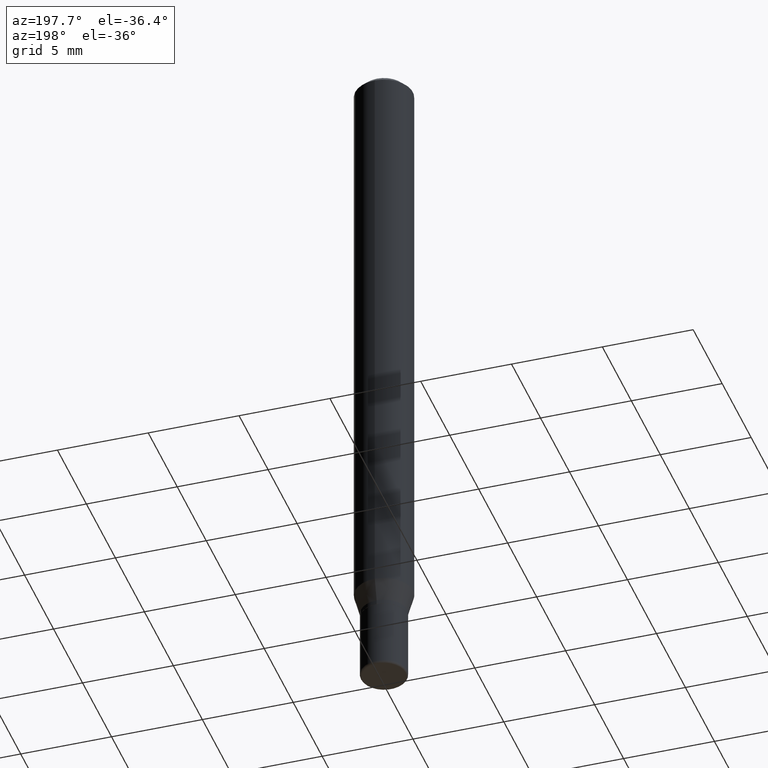
[diagram: clean part render]
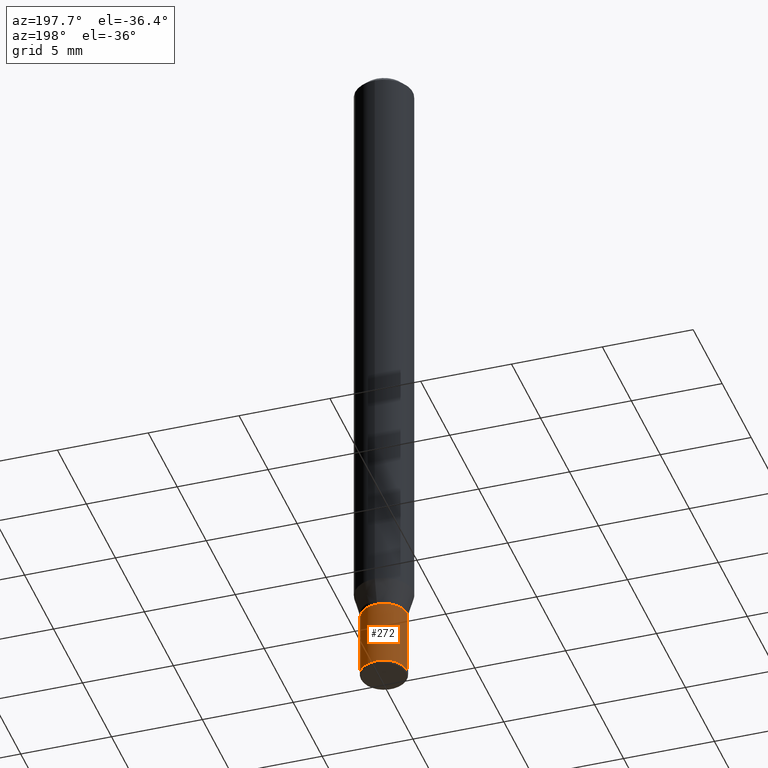
[diagram: same view with one face highlighted and labeled with its STEP entity id]
A machine part, auxiliary view. The second image highlights one B-rep face of the part: STEP entity #272.
In plain terms, the highlighted cylindrical surface (edge-blend (fillet) strip) has radius 1.27 mm, axis along (-0, 0, 1).
Its self-contained STEP definition (entity closure, byte-faithful):
#1 = CARTESIAN_POINT ( 'NONE',  ( 0.000000000000000000, 0.000000000000000000, 0.000000000000000000 ) ) ;
#6 = CARTESIAN_POINT ( 'NONE',  ( -0.05000000000000000278, -4.611360836624325249E-15, -1.350000000000000089 ) ) ;
#20 = DIRECTION ( 'NONE',  ( 1.000000000000000000, -6.982962677686265922E-15, 4.876176775795936353E-29 ) ) ;
#21 = CARTESIAN_POINT ( 'NONE',  ( 3.655975865246779683E-29, -5.219764601570503930E-15, -1.495000000000000329 ) ) ;
#26 = AXIS2_PLACEMENT_3D ( 'NONE', #142, #393, #387 ) ;
#28 = DIRECTION ( 'NONE',  ( -2.445468806185136597E-29, 3.491481338843145583E-15, 1.000000000000000000 ) ) ;
#31 = DIRECTION ( 'NONE',  ( 1.000000000000000000, -6.982962677686266711E-15, 0.000000000000000000 ) ) ;
#35 = VECTOR ( 'NONE', #418, 39.37007874015748143 ) ;
#44 = AXIS2_PLACEMENT_3D ( 'NONE', #1, #49, #20 ) ;
#49 = DIRECTION ( 'NONE',  ( -2.445468806185136597E-29, 3.491481338843145583E-15, 1.000000000000000000 ) ) ;
#54 = EDGE_LOOP ( 'NONE', ( #213, #191, #211, #346 ) ) ;
#75 = CIRCLE ( 'NONE', #141, 0.04999999999999991257 ) ;
#137 = CARTESIAN_POINT ( 'NONE',  ( 0.04999999999999996114, -3.491481338843130397E-16, 2.438088387897966145E-30 ) ) ;
#141 = AXIS2_PLACEMENT_3D ( 'NONE', #21, #28, #31 ) ;
#142 = CARTESIAN_POINT ( 'NONE',  ( 3.301382888349935078E-29, -4.713499807438246596E-15, -1.350000000000000089 ) ) ;
#145 = VERTEX_POINT ( 'NONE', #477 ) ;
#191 = ORIENTED_EDGE ( 'NONE', *, *, #303, .T. ) ;
#207 = CARTESIAN_POINT ( 'NONE',  ( 0.04999999999999991257, -5.568912735454817265E-15, -1.495000000000000329 ) ) ;
#211 = ORIENTED_EDGE ( 'NONE', *, *, #453, .F. ) ;
#213 = ORIENTED_EDGE ( 'NONE', *, *, #474, .T. ) ;
#220 = CARTESIAN_POINT ( 'NONE',  ( -0.04999999999999991257, -4.611360836624325249E-15, -1.495000000000000329 ) ) ;
#264 = LINE ( 'NONE', #137, #431 ) ;
#272 = ADVANCED_FACE ( 'NONE', ( #334 ), #411, .T. ) ;
#285 = CIRCLE ( 'NONE', #26, 0.05000000000000000278 ) ;
#300 = CARTESIAN_POINT ( 'NONE',  ( -0.04999999999999996114, 3.552713678800498168E-16, -2.459467545127451209E-30 ) ) ;
#303 = EDGE_CURVE ( 'NONE', #364, #321, #373, .T. ) ;
#321 = VERTEX_POINT ( 'NONE', #6 ) ;
#327 = EDGE_CURVE ( 'NONE', #423, #145, #264, .T. ) ;
#334 = FACE_OUTER_BOUND ( 'NONE', #54, .T. ) ;
#346 = ORIENTED_EDGE ( 'NONE', *, *, #327, .F. ) ;
#364 = VERTEX_POINT ( 'NONE', #220 ) ;
#373 = LINE ( 'NONE', #300, #35 ) ;
#384 = DIRECTION ( 'NONE',  ( -2.445468806185136877E-29, 3.491481338843145188E-15, 1.000000000000000000 ) ) ;
#387 = DIRECTION ( 'NONE',  ( 1.000000000000000000, -6.982962677686274599E-15, 0.000000000000000000 ) ) ;
#393 = DIRECTION ( 'NONE',  ( -2.445468806185136597E-29, 3.491481338843145583E-15, 1.000000000000000000 ) ) ;
#411 = CYLINDRICAL_SURFACE ( 'NONE', #44, 0.04999999999999996114 ) ;
#418 = DIRECTION ( 'NONE',  ( -2.445468806185136877E-29, 3.491481338843145188E-15, 1.000000000000000000 ) ) ;
#423 = VERTEX_POINT ( 'NONE', #207 ) ;
#431 = VECTOR ( 'NONE', #384, 39.37007874015748143 ) ;
#453 = EDGE_CURVE ( 'NONE', #145, #321, #285, .T. ) ;
#474 = EDGE_CURVE ( 'NONE', #423, #364, #75, .T. ) ;
#477 = CARTESIAN_POINT ( 'NONE',  ( 0.05000000000000000278, -5.062647941322559931E-15, -1.350000000000000089 ) ) ;